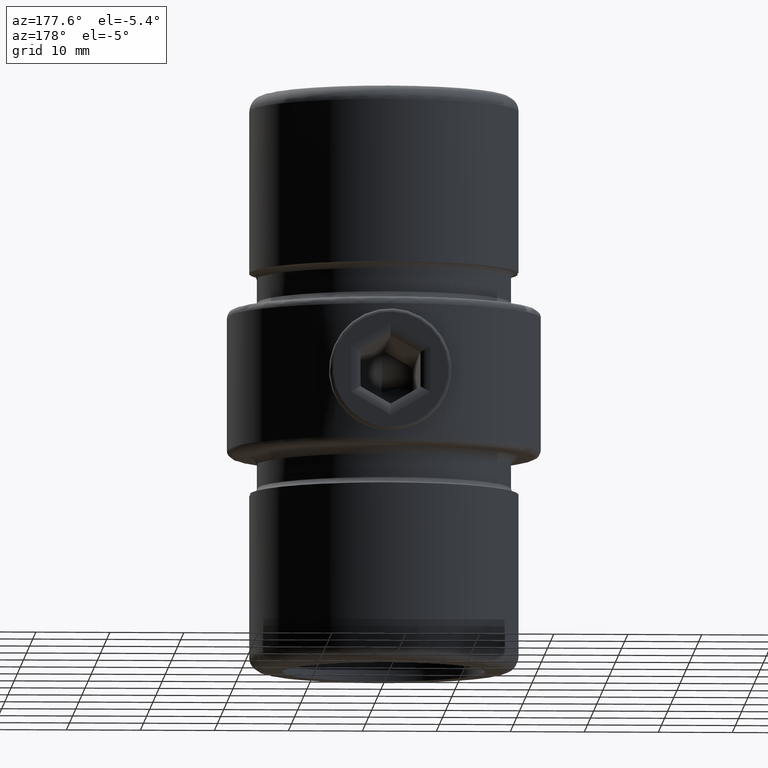
[diagram: clean part render]
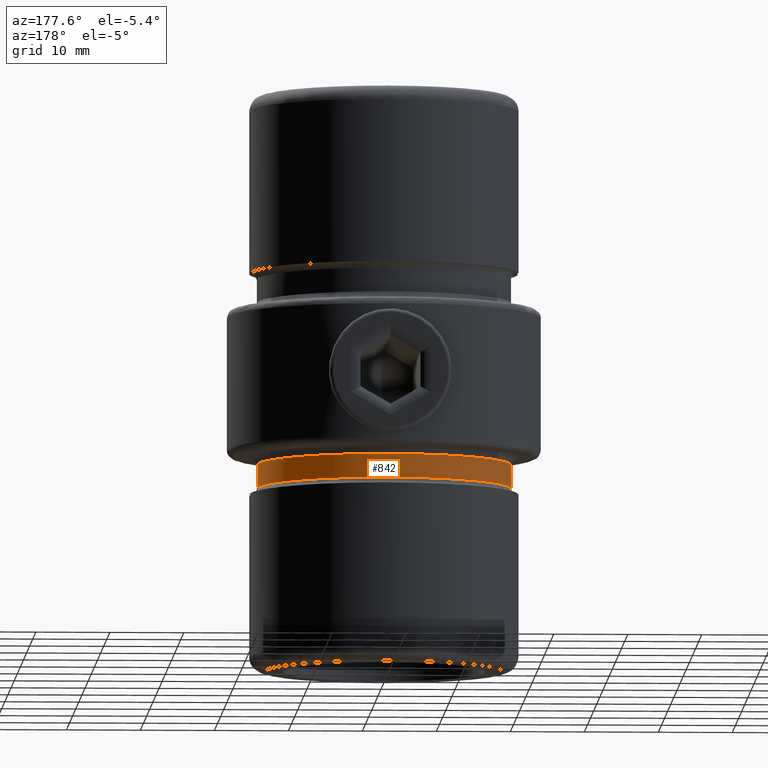
[diagram: same view with one face highlighted and labeled with its STEP entity id]
A machine part, auxiliary view. The second image highlights one B-rep face of the part: STEP entity #842.
In plain terms, the highlighted face is a freeform B-spline surface patch.
Its self-contained STEP definition (entity closure, byte-faithful):
#112 = CARTESIAN_POINT ( 'NONE',  ( -17.07134659737514681, 1.340459983405251077, -14.20000000000018225 ) ) ;
#243 = CARTESIAN_POINT ( 'NONE',  ( 17.10546775395103580, 0.8386550264291208201, -10.00000000000000888 ) ) ;
#279 = CARTESIAN_POINT ( 'NONE',  ( 9.199021174238035670, 13.93999733423593845, -15.00000000000003197 ) ) ;
#305 = CARTESIAN_POINT ( 'NONE',  ( -15.20578418633796147, 7.534239313483561240, -15.00000000000000178 ) ) ;
#842 = ADVANCED_FACE ( 'NONE', ( #9070 ), #11689, .F. ) ;
#1029 = DIRECTION ( 'NONE',  ( 0.000000000000000000, 0.000000000000000000, -1.000000000000000000 ) ) ;
#1054 = DIRECTION ( 'NONE',  ( -0.000000000000000000, -0.000000000000000000, 1.000000000000000000 ) ) ;
#1096 = CARTESIAN_POINT ( 'NONE',  ( -16.34216956022611456, 4.877496218351535795, -14.20000000000016982 ) ) ;
#1115 = CARTESIAN_POINT ( 'NONE',  ( -3.235989647483731524, 16.28986178153701658, -15.00000000000003730 ) ) ;
#1153 = CARTESIAN_POINT ( 'NONE',  ( -17.12657321678021205, 0.7596500860272681344, -15.00000000000001421 ) ) ;
#1292 = EDGE_CURVE ( 'NONE', #6167, #9304, #4884, .T. ) ;
#2003 = CARTESIAN_POINT ( 'NONE',  ( 9.199021174238023235, 13.93999733423591891, -14.20000000000019291 ) ) ;
#2058 = CARTESIAN_POINT ( 'NONE',  ( 17.18356612042271081, 2.168404344971008868E-16, -14.99999999999999467 ) ) ;
#2147 = CARTESIAN_POINT ( 'NONE',  ( 15.23458590117928324, 7.502389005658813836, -11.00000000000002665 ) ) ;
#2168 = CARTESIAN_POINT ( 'NONE',  ( 3.311914035545652002, 16.27491163995944135, -15.00000000000003553 ) ) ;
#2194 = CARTESIAN_POINT ( 'NONE',  ( 17.09956622709683316, 0.8798075829089223587, -11.00000000000000711 ) ) ;
#2234 = CARTESIAN_POINT ( 'NONE',  ( 16.39693132191112923, 4.677362624229461474, -11.00000000000004619 ) ) ;
#2271 = CARTESIAN_POINT ( 'NONE',  ( 9.199021174237973497, 13.93999733423584431, -11.00000000000003020 ) ) ;
#2293 = CARTESIAN_POINT ( 'NONE',  ( 6.425078933150432547, 15.36025359347499730, -10.00000000000003020 ) ) ;
#2808 = CARTESIAN_POINT ( 'NONE',  ( -17.11405153117368272, 0.8727412023426935894, -14.20000000000002771 ) ) ;
#2847 = CARTESIAN_POINT ( 'NONE',  ( 6.425078933150484062, 15.36025359347511277, -14.20000000000018936 ) ) ;
#2856 = CARTESIAN_POINT ( 'NONE',  ( 17.09956622709685448, 0.8798075829087299571, -11.00000000000001421 ) ) ;
#2939 = CARTESIAN_POINT ( 'NONE',  ( 13.61778336678180601, 9.945279738703922234, -10.00000000000001599 ) ) ;
#2979 = CARTESIAN_POINT ( 'NONE',  ( -16.34216956022612521, 4.877496218351541124, -15.00000000000000888 ) ) ;
#2994 = CARTESIAN_POINT ( 'NONE',  ( 11.56657508535813683, 12.13627622987826626, -11.00000000000003020 ) ) ;
#3004 = CARTESIAN_POINT ( 'NONE',  ( -17.18653347947321564, 0.000000000000000000, -15.00000000000000178 ) ) ;
#3084 = CARTESIAN_POINT ( 'NONE',  ( 11.56657508535811196, 12.13627622987823962, -10.00000000000003020 ) ) ;
#3135 = CARTESIAN_POINT ( 'NONE',  ( -17.07134659737336335, 1.340459983420689394, -11.00000000000002309 ) ) ;
#3261 = CARTESIAN_POINT ( 'NONE',  ( -16.99922863140741214, 2.373007347797346789, -10.00000000000004263 ) ) ;
#3296 = CARTESIAN_POINT ( 'NONE',  ( 0.03871226997902271066, 16.61086448928323733, -10.00000000000002842 ) ) ;
#3407 = ORIENTED_EDGE ( 'NONE', *, *, #1292, .T. ) ;
#3513 = EDGE_CURVE ( 'NONE', #4447, #6167, #8034, .T. ) ;
#3639 = CARTESIAN_POINT ( 'NONE',  ( 13.61778336678184864, 9.945279738703948880, -14.20000000000017515 ) ) ;
#3693 = CARTESIAN_POINT ( 'NONE',  ( -17.11405153117151912, 0.8727412023659295581, -11.00000000000001599 ) ) ;
#3882 = CARTESIAN_POINT ( 'NONE',  ( -16.99922863140761464, 2.373007347797385869, -15.00000000000004619 ) ) ;
#3921 = CARTESIAN_POINT ( 'NONE',  ( 15.23458590117937028, 7.502389005658848475, -15.00000000000002665 ) ) ;
#3944 = CARTESIAN_POINT ( 'NONE',  ( -16.34216956022607903, 4.877496218351515367, -11.00000000000001066 ) ) ;
#4090 = CARTESIAN_POINT ( 'NONE',  ( -11.50948627951274439, 12.18543779571416508, -9.999999999999994671 ) ) ;
#4193 = VECTOR ( 'NONE', #1054, 1000.000000000000000 ) ;
#4211 = CARTESIAN_POINT ( 'NONE',  ( -16.34216956022606837, 4.877496218351508261, -10.00000000000000888 ) ) ;
#4447 = VERTEX_POINT ( 'NONE', #6101 ) ;
#4504 = CARTESIAN_POINT ( 'NONE',  ( 17.04596801876197887, 1.414401776322176785, -14.20000000000018048 ) ) ;
#4547 = CARTESIAN_POINT ( 'NONE',  ( 11.56657508535821322, 12.13627622987834087, -14.20000000000019469 ) ) ;
#4696 = CARTESIAN_POINT ( 'NONE',  ( -9.133432242657171685, 13.98190012051112419, -14.20000000000021778 ) ) ;
#4820 = CARTESIAN_POINT ( 'NONE',  ( 16.93734526776795235, 2.644029126595696333, -15.00000000000003908 ) ) ;
#4854 = CARTESIAN_POINT ( 'NONE',  ( 9.199021174237957510, 13.93999733423582121, -10.00000000000003197 ) ) ;
#4878 = CARTESIAN_POINT ( 'NONE',  ( 17.04596801876191847, 1.414401776322285587, -11.00000000000001776 ) ) ;
#4884 = LINE ( 'NONE', #8125, #4193 ) ;
#4898 = CARTESIAN_POINT ( 'NONE',  ( 6.425078933150493832, 15.36025359347513586, -15.00000000000002842 ) ) ;
#4954 = CARTESIAN_POINT ( 'NONE',  ( -15.20578418633794016, 7.534239313483539924, -11.00000000000000178 ) ) ;
#5085 = CARTESIAN_POINT ( 'NONE',  ( -9.133432242657043787, 13.98190012051092346, -10.00000000000005507 ) ) ;
#5417 = CARTESIAN_POINT ( 'NONE',  ( 16.39693132191129621, 4.677362624229523647, -14.20000000000020890 ) ) ;
#5477 = LINE ( 'NONE', #2856, #10640 ) ;
#5626 = CARTESIAN_POINT ( 'NONE',  ( 3.311914035545647117, 16.27491163995942003, -14.20000000000019647 ) ) ;
#5750 = CARTESIAN_POINT ( 'NONE',  ( 15.23458590117925837, 7.502389005658803178, -10.00000000000002665 ) ) ;
#5888 = CARTESIAN_POINT ( 'NONE',  ( -11.50948627951274084, 12.18543779571416152, -10.99999999999999645 ) ) ;
#5928 = CARTESIAN_POINT ( 'NONE',  ( -3.235989647483695997, 16.28986178153684961, -10.00000000000004263 ) ) ;
#6011 = CARTESIAN_POINT ( 'NONE',  ( -6.353066094285742871, 15.38823671837790030, -10.00000000000000711 ) ) ;
#6066 = CARTESIAN_POINT ( 'NONE',  ( 17.09956622709683316, 0.8798075829089223587, -11.00000000000000711 ) ) ;
#6101 = CARTESIAN_POINT ( 'NONE',  ( 17.09956622709686869, 0.8798075829087521615, -14.20000000000001528 ) ) ;
#6167 = VERTEX_POINT ( 'NONE', #10507 ) ;
#6527 = VERTEX_POINT ( 'NONE', #6066 ) ;
#6563 = CARTESIAN_POINT ( 'NONE',  ( 17.18356612042275700, 2.168404344971008868E-16, -9.999999999999992895 ) ) ;
#6602 = CARTESIAN_POINT ( 'NONE',  ( -6.353066094285747312, 15.38823671837794471, -15.00000000000000888 ) ) ;
#6661 = CARTESIAN_POINT ( 'NONE',  ( -16.92484818447800521, 2.656520672081443823, -11.00000000000003908 ) ) ;
#6767 = CARTESIAN_POINT ( 'NONE',  ( 3.311914035545627133, 16.27491163995932766, -11.00000000000003553 ) ) ;
#6812 = CARTESIAN_POINT ( 'NONE',  ( -13.56813929733636925, 10.01478486884963637, -11.00000000000002842 ) ) ;
#6886 = CARTESIAN_POINT ( 'NONE',  ( -17.18653347947321564, 0.000000000000000000, -10.00000000000000000 ) ) ;
#7172 = B_SPLINE_CURVE_WITH_KNOTS ( 'NONE', 3,
 ( #9409, #3135, #6661, #3944, #4954, #6812, #5888, #7615, #9453, #7654, #10334, #6767, #7570, #2271, #2994, #9378, #2147, #2234, #10293, #4878, #2194 ),
 .UNSPECIFIED., .F., .F.,
 ( 4, 1, 1, 1, 1, 1, 1, 1, 1, 1, 1, 1, 1, 1, 1, 1, 1, 1, 4 ),
 ( 0.0008738539556522610576, 0.002279990205386094385, 0.004841933258772275830, 0.007716996652560609987, 0.01090514243165404372, 0.01368943406426827505, 0.01665123017353226792, 0.01976958399494751703, 0.02300131864605294008, 0.02628966771859516521, 0.02957801446383465441, 0.03280974982838943260, 0.03592810327094549810, 0.03888989892005613458, 0.04167419169752526603, 0.04486233764376831162, 0.04773740105349561641, 0.05033745645929679768, 0.05179986383035171948 ),
 .UNSPECIFIED. ) ;
#7570 = CARTESIAN_POINT ( 'NONE',  ( 6.425078933150445870, 15.36025359347502572, -11.00000000000002842 ) ) ;
#7589 = CARTESIAN_POINT ( 'NONE',  ( 13.61778336678185930, 9.945279738703954209, -15.00000000000001421 ) ) ;
#7615 = CARTESIAN_POINT ( 'NONE',  ( -9.133432242657075761, 13.98190012051097142, -11.00000000000005507 ) ) ;
#7631 = CARTESIAN_POINT ( 'NONE',  ( 0.03871226997903214062, 16.61086448928338299, -15.00000000000003020 ) ) ;
#7654 = CARTESIAN_POINT ( 'NONE',  ( -3.235989647483703102, 16.28986178153688158, -11.00000000000004086 ) ) ;
#7766 = CARTESIAN_POINT ( 'NONE',  ( 3.311914035545620472, 16.27491163995929924, -10.00000000000003553 ) ) ;
#7902 = EDGE_CURVE ( 'NONE', #6527, #4447, #5477, .T. ) ;
#8010 = ORIENTED_EDGE ( 'NONE', *, *, #8449, .T. ) ;
#8034 = B_SPLINE_CURVE_WITH_KNOTS ( 'NONE', 3,
 ( #10922, #4504, #8235, #5417, #9109, #3639, #4547, #2003, #2847, #5626, #10147, #10186, #9231, #4696, #8394, #9265, #8352, #1096, #11039, #112, #2808 ),
 .UNSPECIFIED., .F., .F.,
 ( 4, 1, 1, 1, 1, 1, 1, 1, 1, 1, 1, 1, 1, 1, 1, 1, 1, 1, 4 ),
 ( 0.0008837466129604539108, 0.002364273332636275364, 0.004996543640566257147, 0.007907229324400430123, 0.01113487666334511510, 0.01395366705925883341, 0.01695215960211593487, 0.02010914970246430872, 0.02338092653622895686, 0.02671001617038039691, 0.03003910816067004164, 0.03331088427214563136, 0.03646787475604728462, 0.03946636776475908465, 0.04228515700163305163, 0.04551280417135712686, 0.04842348983905483961, 0.05101717557936232689, 0.05244073397388015340 ),
 .UNSPECIFIED. ) ;
#8125 = CARTESIAN_POINT ( 'NONE',  ( -17.11405153117157596, 0.8727412023657828977, -14.20000000000003126 ) ) ;
#8235 = CARTESIAN_POINT ( 'NONE',  ( 16.88189616986221253, 2.852659027895783073, -14.20000000000020179 ) ) ;
#8352 = CARTESIAN_POINT ( 'NONE',  ( -15.20578418633795792, 7.534239313483556799, -14.20000000000016449 ) ) ;
#8394 = CARTESIAN_POINT ( 'NONE',  ( -11.50948627951273018, 12.18543779571414731, -14.20000000000015916 ) ) ;
#8441 = CARTESIAN_POINT ( 'NONE',  ( -11.50948627951272840, 12.18543779571414198, -14.99999999999999822 ) ) ;
#8449 = EDGE_CURVE ( 'NONE', #9304, #6527, #7172, .T. ) ;
#8559 = CARTESIAN_POINT ( 'NONE',  ( -13.56813929733646873, 10.01478486884971986, -15.00000000000003020 ) ) ;
#9070 = FACE_OUTER_BOUND ( 'NONE', #9941, .T. ) ;
#9109 = CARTESIAN_POINT ( 'NONE',  ( 15.23458590117935252, 7.502389005658841370, -14.20000000000018758 ) ) ;
#9153 = ORIENTED_EDGE ( 'NONE', *, *, #3513, .T. ) ;
#9162 = ORIENTED_EDGE ( 'NONE', *, *, #7902, .T. ) ;
#9231 = CARTESIAN_POINT ( 'NONE',  ( -6.353066094285746424, 15.38823671837793761, -14.20000000000016982 ) ) ;
#9265 = CARTESIAN_POINT ( 'NONE',  ( -13.56813929733644919, 10.01478486884970209, -14.20000000000019114 ) ) ;
#9304 = VERTEX_POINT ( 'NONE', #3693 ) ;
#9360 = CARTESIAN_POINT ( 'NONE',  ( 16.39693132191107594, 4.677362624229441934, -10.00000000000004619 ) ) ;
#9378 = CARTESIAN_POINT ( 'NONE',  ( 13.61778336678181844, 9.945279738703929340, -11.00000000000001421 ) ) ;
#9396 = CARTESIAN_POINT ( 'NONE',  ( -9.133432242657196554, 13.98190012051116149, -15.00000000000005507 ) ) ;
#9409 = CARTESIAN_POINT ( 'NONE',  ( -17.11405153117151912, 0.8727412023659295581, -11.00000000000001599 ) ) ;
#9453 = CARTESIAN_POINT ( 'NONE',  ( -6.353066094285743759, 15.38823671837791096, -11.00000000000000711 ) ) ;
#9649 = CARTESIAN_POINT ( 'NONE',  ( -15.20578418633793483, 7.534239313483533707, -10.00000000000000000 ) ) ;
#9941 = EDGE_LOOP ( 'NONE', ( #8010, #9162, #9153, #3407 ) ) ;
#10147 = CARTESIAN_POINT ( 'NONE',  ( 0.03871226997903064182, 16.61086448928335813, -14.20000000000019114 ) ) ;
#10186 = CARTESIAN_POINT ( 'NONE',  ( -3.235989647483725751, 16.28986178153698816, -14.20000000000019824 ) ) ;
#10274 = CARTESIAN_POINT ( 'NONE',  ( 17.10546775395106778, 0.8386550264291144918, -15.00000000000001243 ) ) ;
#10293 = CARTESIAN_POINT ( 'NONE',  ( 16.88189616986207398, 2.852659027895826149, -11.00000000000004086 ) ) ;
#10334 = CARTESIAN_POINT ( 'NONE',  ( 0.03871226997902459804, 16.61086448928326931, -11.00000000000002665 ) ) ;
#10392 = CARTESIAN_POINT ( 'NONE',  ( 16.93734526776776050, 2.644029126595716317, -10.00000000000004086 ) ) ;
#10507 = CARTESIAN_POINT ( 'NONE',  ( -17.11405153117368272, 0.8727412023426935894, -14.20000000000002771 ) ) ;
#10534 = CARTESIAN_POINT ( 'NONE',  ( -17.12657321678014455, 0.7596500860272555888, -10.00000000000001421 ) ) ;
#10640 = VECTOR ( 'NONE', #1029, 1000.000000000000000 ) ;
#10922 = CARTESIAN_POINT ( 'NONE',  ( 17.09956622709686869, 0.8798075829087521615, -14.20000000000001528 ) ) ;
#11039 = CARTESIAN_POINT ( 'NONE',  ( -16.92484818448010486, 2.656520672073908074, -14.20000000000020002 ) ) ;
#11168 = CARTESIAN_POINT ( 'NONE',  ( 11.56657508535823098, 12.13627622987836041, -15.00000000000003375 ) ) ;
#11281 = CARTESIAN_POINT ( 'NONE',  ( 16.39693132191133884, 4.677362624229539634, -15.00000000000004796 ) ) ;
#11447 = CARTESIAN_POINT ( 'NONE',  ( -13.56813929733634438, 10.01478486884961683, -10.00000000000003020 ) ) ;
#11689 = B_SPLINE_SURFACE_WITH_KNOTS ( 'NONE', 1, 3, ( 
 ( #6886, #10534, #3261, #4211, #9649, #11447, #4090, #5085, #6011, #5928, #3296, #7766, #2293, #4854, #3084, #2939, #5750, #9360, #10392, #243, #6563 ),
 ( #3004, #1153, #3882, #2979, #305, #8559, #8441, #9396, #6602, #1115, #7631, #2168, #4898, #279, #11168, #7589, #3921, #11281, #4820, #10274, #2058 ) ),
 .UNSPECIFIED., .F., .F., .F.,
 ( 2, 2 ),
 ( 4, 1, 1, 1, 1, 1, 1, 1, 1, 1, 1, 1, 1, 1, 1, 1, 1, 1, 4 ),
 ( 0.1486006705124625904, 0.5000000000000001110 ),
 ( 0.000000000000000000, 0.04334590933460619883, 0.09205875031060782587, 0.1467252682538634223, 0.2073447414853315240, 0.2602853231860381977, 0.3166009788690254956, 0.3758934262982269181, 0.4373416992908125689, 0.4998664401247713274, 0.5623911367073451961, 0.6238394232654724814, 0.6831318634910372722, 0.7394475104246585051, 0.7923881138936611501, 0.8530075903033156326, 0.9076741085496352612, 0.9571116186239445600, 0.9999999999999998890 ),
 .UNSPECIFIED. ) ;